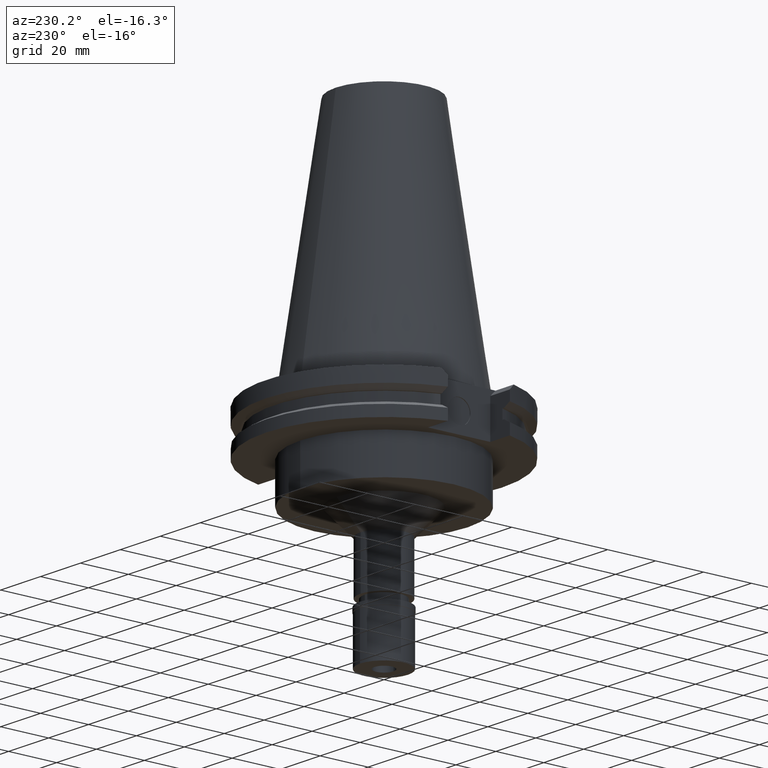
[diagram: clean part render]
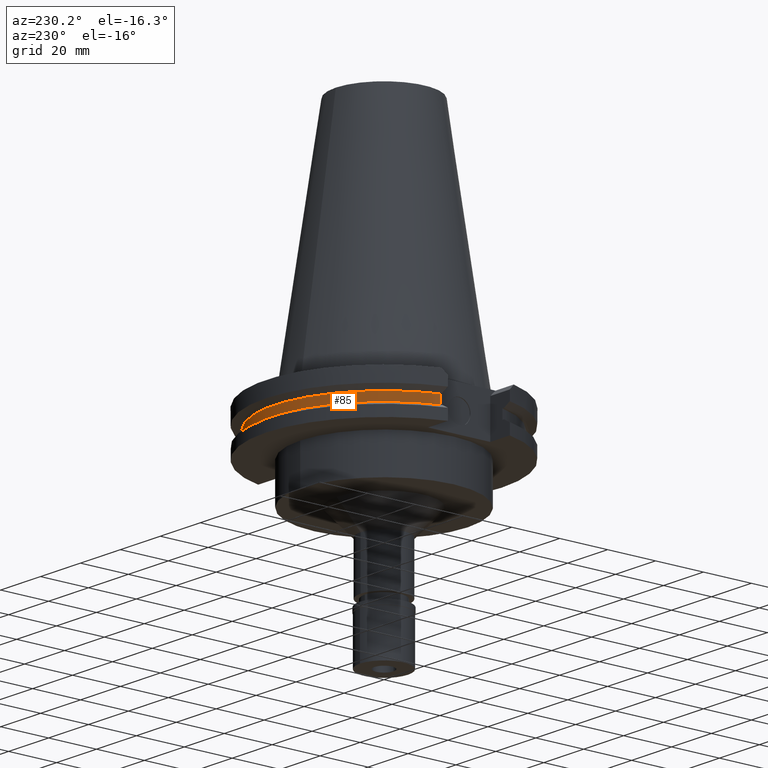
[diagram: same view with one face highlighted and labeled with its STEP entity id]
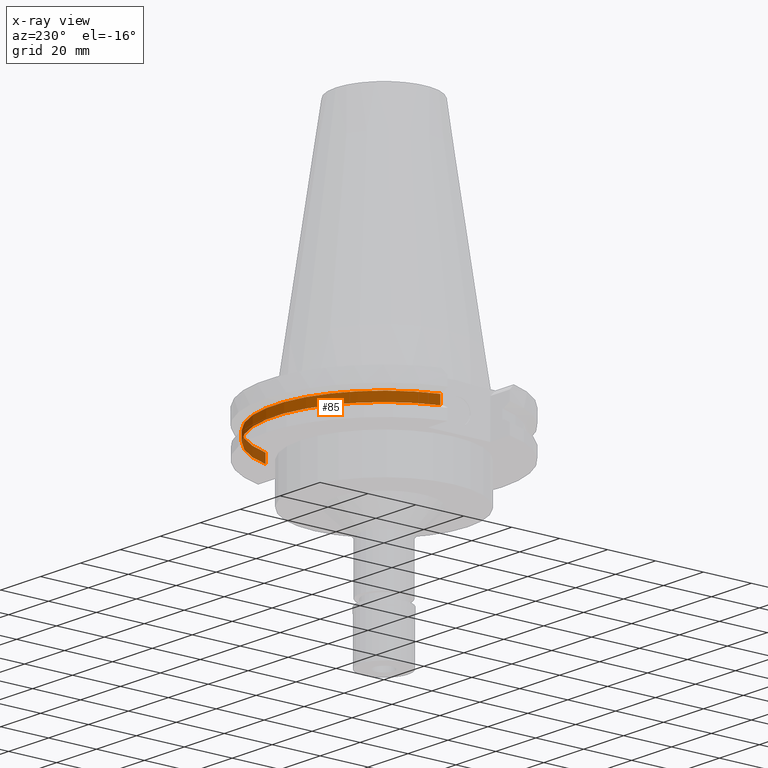
[diagram: x-ray of the same camera — body ghosted, the highlighted face saturated]
A machine part, auxiliary view. The second image highlights one B-rep face of the part: STEP entity #85.
The next image is the same camera in x-ray: the body ghosted, the highlighted face saturated — about 7% of this face is hidden behind the body in this view.
In plain terms, the highlighted cylindrical surface (partial cylindrical patch) has radius 45.645 mm, axis along (0, 0, -1).
Its self-contained STEP definition (entity closure, byte-faithful):
#81 = VERTEX_POINT ( 'NONE', #1696 ) ;
#85 = ADVANCED_FACE ( 'NONE', ( #138 ), #2718, .T. ) ;
#117 = CARTESIAN_POINT ( 'NONE',  ( -43.76795631508999662, 12.95500000000000007, -9.207499999999999574 ) ) ;
#138 = FACE_OUTER_BOUND ( 'NONE', #2245, .T. ) ;
#145 = EDGE_CURVE ( 'NONE', #81, #1216, #2237, .T. ) ;
#172 = CARTESIAN_POINT ( 'NONE',  ( 0.0000000000000000000, 2.580636967502999935E-14, -13.04749999999999943 ) ) ;
#209 = DIRECTION ( 'NONE',  ( 0.0000000000000000000, -1.000000000000000000, 0.0000000000000000000 ) ) ;
#215 = AXIS2_PLACEMENT_3D ( 'NONE', #1167, #3250, #2984 ) ;
#222 = ORIENTED_EDGE ( 'NONE', *, *, #2457, .F. ) ;
#388 = VERTEX_POINT ( 'NONE', #1140 ) ;
#413 = EDGE_CURVE ( 'NONE', #388, #2408, #537, .T. ) ;
#537 = CIRCLE ( 'NONE', #1165, 45.64500000000001734 ) ;
#595 = CARTESIAN_POINT ( 'NONE',  ( 43.76795631508999662, 12.95500000000000007, -9.207499999999999574 ) ) ;
#632 = ORIENTED_EDGE ( 'NONE', *, *, #1532, .F. ) ;
#769 = ORIENTED_EDGE ( 'NONE', *, *, #145, .T. ) ;
#1128 = DIRECTION ( 'NONE',  ( 0.0000000000000000000, 0.0000000000000000000, -1.000000000000000000 ) ) ;
#1140 = CARTESIAN_POINT ( 'NONE',  ( 43.76795631508999662, 12.95500000000000007, -13.04749999999999943 ) ) ;
#1165 = AXIS2_PLACEMENT_3D ( 'NONE', #172, #2168, #3244 ) ;
#1167 = CARTESIAN_POINT ( 'NONE',  ( 0.0000000000000000000, 2.580636967502999935E-14, -9.207499999999999574 ) ) ;
#1216 = VERTEX_POINT ( 'NONE', #595 ) ;
#1305 = CARTESIAN_POINT ( 'NONE',  ( 43.76795631508999662, 12.95500000000000007, -13.04749999999999943 ) ) ;
#1460 = CARTESIAN_POINT ( 'NONE',  ( 0.0000000000000000000, 2.580636967502999935E-14, 110.7250000000000085 ) ) ;
#1470 = VECTOR ( 'NONE', #3317, 1000.000000000000000 ) ;
#1532 = EDGE_CURVE ( 'NONE', #388, #1216, #2269, .T. ) ;
#1696 = CARTESIAN_POINT ( 'NONE',  ( -43.76795631508999662, 12.95500000000000007, -9.207499999999999574 ) ) ;
#1860 = CARTESIAN_POINT ( 'NONE',  ( -43.76795631508999662, 12.95500000000000007, -13.04749999999999943 ) ) ;
#1976 = ORIENTED_EDGE ( 'NONE', *, *, #413, .T. ) ;
#2168 = DIRECTION ( 'NONE',  ( 0.0000000000000000000, 0.0000000000000000000, 1.000000000000000000 ) ) ;
#2237 = CIRCLE ( 'NONE', #215, 45.64499999999999602 ) ;
#2245 = EDGE_LOOP ( 'NONE', ( #222, #769, #632, #1976 ) ) ;
#2269 = LINE ( 'NONE', #1305, #1470 ) ;
#2407 = LINE ( 'NONE', #117, #3237 ) ;
#2408 = VERTEX_POINT ( 'NONE', #1860 ) ;
#2457 = EDGE_CURVE ( 'NONE', #81, #2408, #2407, .T. ) ;
#2718 = CYLINDRICAL_SURFACE ( 'NONE', #3110, 45.64499999999999602 ) ;
#2984 = DIRECTION ( 'NONE',  ( 0.0000000000000000000, 1.000000000000000000, 0.0000000000000000000 ) ) ;
#3005 = DIRECTION ( 'NONE',  ( 0.0000000000000000000, 0.0000000000000000000, -1.000000000000000000 ) ) ;
#3110 = AXIS2_PLACEMENT_3D ( 'NONE', #1460, #3005, #209 ) ;
#3237 = VECTOR ( 'NONE', #1128, 1000.000000000000000 ) ;
#3244 = DIRECTION ( 'NONE',  ( 0.9588773428654665532, 0.2838207908861898887, 0.0000000000000000000 ) ) ;
#3250 = DIRECTION ( 'NONE',  ( 0.0000000000000000000, 0.0000000000000000000, -1.000000000000000000 ) ) ;
#3317 = DIRECTION ( 'NONE',  ( 0.0000000000000000000, 0.0000000000000000000, 1.000000000000000000 ) ) ;